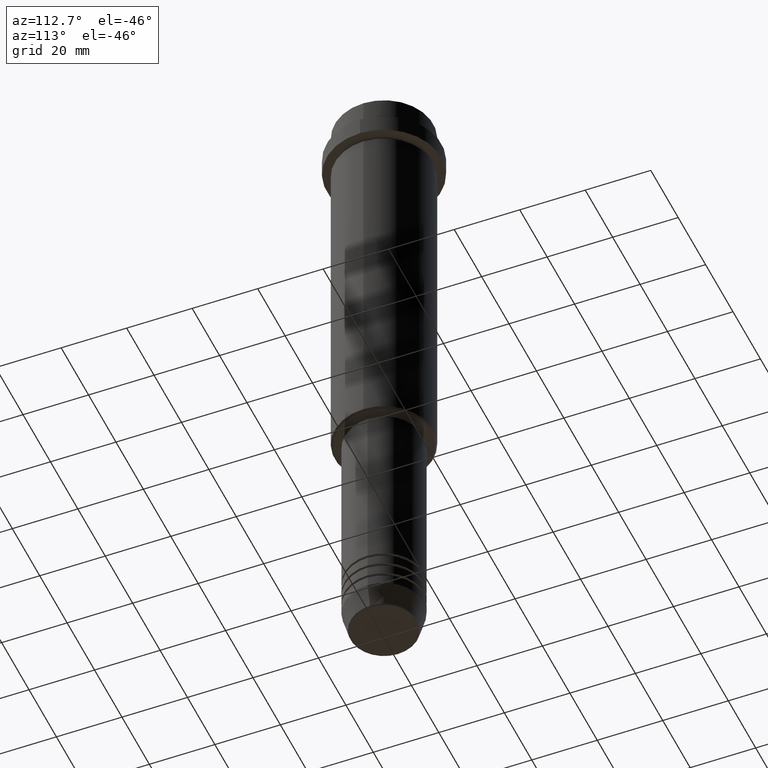
[diagram: clean part render]
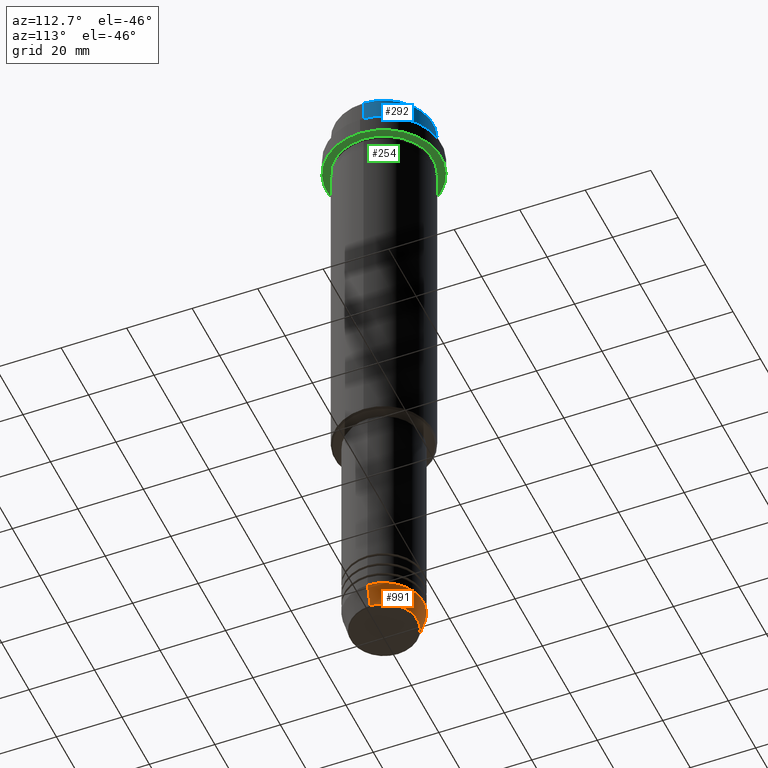
[diagram: same view with three faces highlighted in distinct colors, each labeled with its STEP entity id]
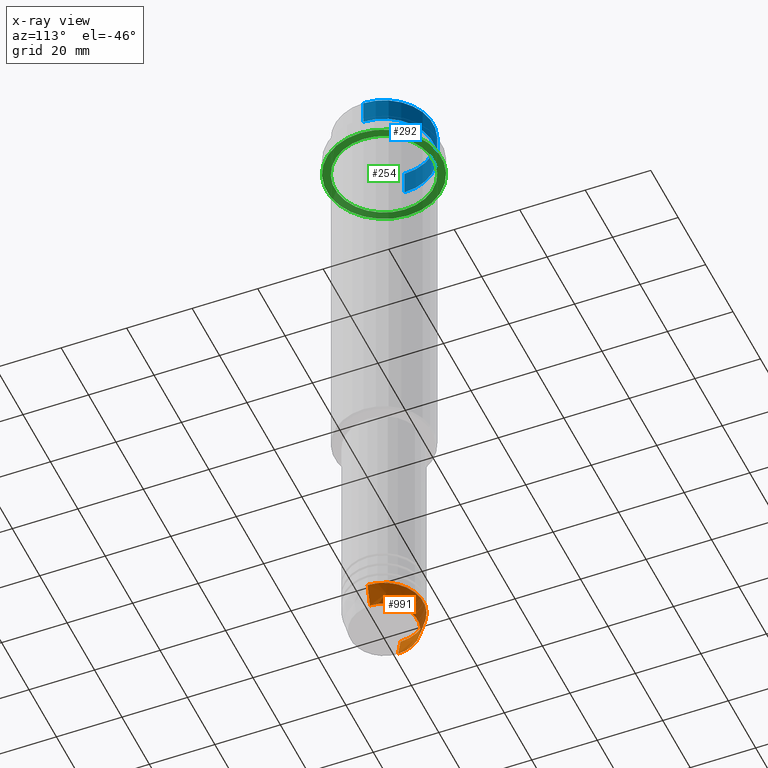
[diagram: x-ray of the same camera — body ghosted, the three highlighted faces saturated]
A machine part, auxiliary view with three faces highlighted in distinct colors.
The next image is the same camera in x-ray (body ghosted, the three faces saturated) — at least one of them is partly hidden behind the body in this view.
Their STEP definitions:

[orange] entity #991 — the highlighted conical surface has half-angle 15 deg.
#40 = CARTESIAN_POINT ( 'NONE',  ( 0.000000000000000000, 0.000000000000000000, -199.6294095225512706 ) ) ;
#63 = ORIENTED_EDGE ( 'NONE', *, *, #619, .T. ) ;
#66 = CONICAL_SURFACE ( 'NONE', #158, 12.00000000000000000, 0.2617993877991500740 ) ;
#103 = DIRECTION ( 'NONE',  ( 1.000000000000000000, 0.000000000000000000, 0.000000000000000000 ) ) ;
#112 = VERTEX_POINT ( 'NONE', #857 ) ;
#128 = CARTESIAN_POINT ( 'NONE',  ( 12.00000000000000000, 0.000000000000000000, -193.0000000000000000 ) ) ;
#158 = AXIS2_PLACEMENT_3D ( 'NONE', #198, #633, #308 ) ;
#160 = VECTOR ( 'NONE', #1121, 1000.000000000000000 ) ;
#178 = EDGE_CURVE ( 'NONE', #273, #112, #557, .T. ) ;
#198 = CARTESIAN_POINT ( 'NONE',  ( 0.000000000000000000, 0.000000000000000000, -193.0000000000000000 ) ) ;
#258 = LINE ( 'NONE', #576, #160 ) ;
#273 = VERTEX_POINT ( 'NONE', #128 ) ;
#308 = DIRECTION ( 'NONE',  ( 1.000000000000000000, 0.000000000000000000, 0.000000000000000000 ) ) ;
#311 = DIRECTION ( 'NONE',  ( -0.2588190451025213501, 3.169619151431772337E-17, 0.9659258262890680902 ) ) ;
#316 = CARTESIAN_POINT ( 'NONE',  ( -12.00000000000000000, 1.469576158976823947E-15, -193.0000000000000000 ) ) ;
#380 = VERTEX_POINT ( 'NONE', #588 ) ;
#464 = CARTESIAN_POINT ( 'NONE',  ( 0.000000000000000000, 0.000000000000000000, -193.0000000000000000 ) ) ;
#476 = DIRECTION ( 'NONE',  ( -0.000000000000000000, -0.000000000000000000, 1.000000000000000000 ) ) ;
#554 = ORIENTED_EDGE ( 'NONE', *, *, #178, .F. ) ;
#557 = CIRCLE ( 'NONE', #1314, 12.00000000000000000 ) ;
#576 = CARTESIAN_POINT ( 'NONE',  ( 12.00000000000000000, 0.000000000000000000, -193.0000000000000000 ) ) ;
#588 = CARTESIAN_POINT ( 'NONE',  ( 10.22365507213719127, 0.000000000000000000, -199.6294095225512706 ) ) ;
#619 = EDGE_CURVE ( 'NONE', #1283, #112, #1274, .T. ) ;
#633 = DIRECTION ( 'NONE',  ( -0.000000000000000000, -0.000000000000000000, 1.000000000000000000 ) ) ;
#780 = VECTOR ( 'NONE', #311, 1000.000000000000000 ) ;
#834 = AXIS2_PLACEMENT_3D ( 'NONE', #40, #476, #893 ) ;
#855 = CIRCLE ( 'NONE', #834, 10.22365507213719127 ) ;
#857 = CARTESIAN_POINT ( 'NONE',  ( -12.00000000000000000, 1.469576158976823947E-15, -193.0000000000000000 ) ) ;
#893 = DIRECTION ( 'NONE',  ( 1.000000000000000000, 0.000000000000000000, 0.000000000000000000 ) ) ;
#905 = CARTESIAN_POINT ( 'NONE',  ( -10.22365507213719127, 1.360806402472382744E-15, -199.6294095225512706 ) ) ;
#907 = DIRECTION ( 'NONE',  ( -0.000000000000000000, -0.000000000000000000, 1.000000000000000000 ) ) ;
#991 = ADVANCED_FACE ( 'NONE', ( #1272 ), #66, .T. ) ;
#1121 = DIRECTION ( 'NONE',  ( 0.2588190451025213501, 0.000000000000000000, 0.9659258262890680902 ) ) ;
#1181 = ORIENTED_EDGE ( 'NONE', *, *, #1290, .F. ) ;
#1272 = FACE_OUTER_BOUND ( 'NONE', #1280, .T. ) ;
#1274 = LINE ( 'NONE', #316, #780 ) ;
#1280 = EDGE_LOOP ( 'NONE', ( #1399, #63, #554, #1181 ) ) ;
#1283 = VERTEX_POINT ( 'NONE', #905 ) ;
#1290 = EDGE_CURVE ( 'NONE', #380, #273, #258, .T. ) ;
#1314 = AXIS2_PLACEMENT_3D ( 'NONE', #464, #907, #103 ) ;
#1329 = EDGE_CURVE ( 'NONE', #380, #1283, #855, .T. ) ;
#1399 = ORIENTED_EDGE ( 'NONE', *, *, #1329, .T. ) ;

[blue] entity #292 — the highlighted cylindrical surface (partial cylindrical patch) has radius 15 mm, axis along (-0, -0, 1).
#1 = ORIENTED_EDGE ( 'NONE', *, *, #156, .T. ) ;
#6 = ORIENTED_EDGE ( 'NONE', *, *, #175, .T. ) ;
#34 = DIRECTION ( 'NONE',  ( 1.000000000000000000, 0.000000000000000000, 0.000000000000000000 ) ) ;
#141 = DIRECTION ( 'NONE',  ( -0.000000000000000000, -0.000000000000000000, 1.000000000000000000 ) ) ;
#156 = EDGE_CURVE ( 'NONE', #789, #676, #778, .T. ) ;
#175 = EDGE_CURVE ( 'NONE', #609, #1392, #1110, .T. ) ;
#176 = CARTESIAN_POINT ( 'NONE',  ( 0.000000000000000000, 0.000000000000000000, -0.5000000000000108802 ) ) ;
#209 = DIRECTION ( 'NONE',  ( -0.000000000000000000, -0.000000000000000000, 1.000000000000000000 ) ) ;
#233 = EDGE_LOOP ( 'NONE', ( #6, #315, #1, #1400 ) ) ;
#266 = CARTESIAN_POINT ( 'NONE',  ( -15.00000000000000000, 1.836970198721029589E-15, -0.5000000000000108802 ) ) ;
#292 = ADVANCED_FACE ( 'NONE', ( #453 ), #357, .T. ) ;
#315 = ORIENTED_EDGE ( 'NONE', *, *, #667, .T. ) ;
#357 = CYLINDRICAL_SURFACE ( 'NONE', #914, 15.00000000000000000 ) ;
#372 = VECTOR ( 'NONE', #141, 1000.000000000000000 ) ;
#386 = CARTESIAN_POINT ( 'NONE',  ( 0.000000000000000000, 0.000000000000000000, -7.999999999999998224 ) ) ;
#406 = DIRECTION ( 'NONE',  ( -0.000000000000000000, -0.000000000000000000, 1.000000000000000000 ) ) ;
#453 = FACE_OUTER_BOUND ( 'NONE', #233, .T. ) ;
#550 = LINE ( 'NONE', #1401, #755 ) ;
#609 = VERTEX_POINT ( 'NONE', #1366 ) ;
#667 = EDGE_CURVE ( 'NONE', #1392, #789, #550, .T. ) ;
#676 = VERTEX_POINT ( 'NONE', #1202 ) ;
#755 = VECTOR ( 'NONE', #209, 1000.000000000000000 ) ;
#778 = CIRCLE ( 'NONE', #830, 15.00000000000000000 ) ;
#789 = VERTEX_POINT ( 'NONE', #266 ) ;
#794 = CARTESIAN_POINT ( 'NONE',  ( 15.00000000000000000, 0.000000000000000000, 0.000000000000000000 ) ) ;
#795 = DIRECTION ( 'NONE',  ( 1.000000000000000000, 0.000000000000000000, 0.000000000000000000 ) ) ;
#800 = DIRECTION ( 'NONE',  ( -0.000000000000000000, -0.000000000000000000, 1.000000000000000000 ) ) ;
#830 = AXIS2_PLACEMENT_3D ( 'NONE', #176, #923, #34 ) ;
#914 = AXIS2_PLACEMENT_3D ( 'NONE', #1374, #406, #1267 ) ;
#923 = DIRECTION ( 'NONE',  ( 0.000000000000000000, 0.000000000000000000, -1.000000000000000000 ) ) ;
#1013 = LINE ( 'NONE', #794, #372 ) ;
#1110 = CIRCLE ( 'NONE', #1355, 15.00000000000000000 ) ;
#1143 = CARTESIAN_POINT ( 'NONE',  ( -15.00000000000000000, 1.836970198721029589E-15, -7.999999999999998224 ) ) ;
#1202 = CARTESIAN_POINT ( 'NONE',  ( 15.00000000000000000, 0.000000000000000000, -0.5000000000000108802 ) ) ;
#1267 = DIRECTION ( 'NONE',  ( 1.000000000000000000, 0.000000000000000000, 0.000000000000000000 ) ) ;
#1300 = EDGE_CURVE ( 'NONE', #609, #676, #1013, .T. ) ;
#1355 = AXIS2_PLACEMENT_3D ( 'NONE', #386, #800, #795 ) ;
#1366 = CARTESIAN_POINT ( 'NONE',  ( 15.00000000000000000, 0.000000000000000000, -7.999999999999998224 ) ) ;
#1374 = CARTESIAN_POINT ( 'NONE',  ( 0.000000000000000000, 0.000000000000000000, 0.000000000000000000 ) ) ;
#1392 = VERTEX_POINT ( 'NONE', #1143 ) ;
#1400 = ORIENTED_EDGE ( 'NONE', *, *, #1300, .F. ) ;
#1401 = CARTESIAN_POINT ( 'NONE',  ( -15.00000000000000000, 1.836970198721029589E-15, 0.000000000000000000 ) ) ;

[green] entity #254 — the highlighted planar face has unit normal (0, 0, -1).
#22 = AXIS2_PLACEMENT_3D ( 'NONE', #24, #402, #508 ) ;
#24 = CARTESIAN_POINT ( 'NONE',  ( 0.000000000000000000, 0.000000000000000000, -15.00000000000000000 ) ) ;
#27 = CARTESIAN_POINT ( 'NONE',  ( 0.000000000000000000, 0.000000000000000000, -15.00000000000000000 ) ) ;
#29 = DIRECTION ( 'NONE',  ( -1.000000000000000000, 0.000000000000000000, 0.000000000000000000 ) ) ;
#47 = EDGE_CURVE ( 'NONE', #1273, #507, #1379, .T. ) ;
#90 = DIRECTION ( 'NONE',  ( -0.000000000000000000, -0.000000000000000000, 1.000000000000000000 ) ) ;
#126 = CARTESIAN_POINT ( 'NONE',  ( 0.000000000000000000, 0.000000000000000000, -15.00000000000000000 ) ) ;
#151 = AXIS2_PLACEMENT_3D ( 'NONE', #27, #1108, #559 ) ;
#181 = ORIENTED_EDGE ( 'NONE', *, *, #211, .T. ) ;
#205 = ORIENTED_EDGE ( 'NONE', *, *, #1352, .T. ) ;
#211 = EDGE_CURVE ( 'NONE', #427, #1285, #345, .T. ) ;
#213 = CIRCLE ( 'NONE', #22, 17.50000000000000000 ) ;
#246 = FACE_OUTER_BOUND ( 'NONE', #1038, .T. ) ;
#254 = ADVANCED_FACE ( 'NONE', ( #962, #246 ), #422, .T. ) ;
#276 = AXIS2_PLACEMENT_3D ( 'NONE', #1064, #864, #1387 ) ;
#326 = AXIS2_PLACEMENT_3D ( 'NONE', #126, #570, #29 ) ;
#345 = CIRCLE ( 'NONE', #850, 14.99999999999999467 ) ;
#402 = DIRECTION ( 'NONE',  ( -0.000000000000000000, -0.000000000000000000, 1.000000000000000000 ) ) ;
#422 = PLANE ( 'NONE',  #276 ) ;
#427 = VERTEX_POINT ( 'NONE', #798 ) ;
#507 = VERTEX_POINT ( 'NONE', #719 ) ;
#508 = DIRECTION ( 'NONE',  ( 1.000000000000000000, 0.000000000000000000, 0.000000000000000000 ) ) ;
#559 = DIRECTION ( 'NONE',  ( 1.000000000000000000, 0.000000000000000000, 0.000000000000000000 ) ) ;
#570 = DIRECTION ( 'NONE',  ( -0.000000000000000000, -0.000000000000000000, 1.000000000000000000 ) ) ;
#605 = EDGE_LOOP ( 'NONE', ( #205, #181 ) ) ;
#697 = CARTESIAN_POINT ( 'NONE',  ( -14.99999999999999467, 0.000000000000000000, -15.00000000000000000 ) ) ;
#719 = CARTESIAN_POINT ( 'NONE',  ( 17.50000000000000000, 0.000000000000000000, -15.00000000000000000 ) ) ;
#798 = CARTESIAN_POINT ( 'NONE',  ( 14.99999999999999467, 1.836970198721029194E-15, -15.00000000000000000 ) ) ;
#850 = AXIS2_PLACEMENT_3D ( 'NONE', #1167, #90, #1107 ) ;
#864 = DIRECTION ( 'NONE',  ( 0.000000000000000000, 0.000000000000000000, -1.000000000000000000 ) ) ;
#928 = EDGE_CURVE ( 'NONE', #507, #1273, #213, .T. ) ;
#937 = CIRCLE ( 'NONE', #326, 14.99999999999999467 ) ;
#962 = FACE_BOUND ( 'NONE', #605, .T. ) ;
#1038 = EDGE_LOOP ( 'NONE', ( #1403, #1050 ) ) ;
#1050 = ORIENTED_EDGE ( 'NONE', *, *, #47, .F. ) ;
#1064 = CARTESIAN_POINT ( 'NONE',  ( 0.000000000000000000, 17.50000000000000000, -15.00000000000000000 ) ) ;
#1107 = DIRECTION ( 'NONE',  ( -1.000000000000000000, 0.000000000000000000, 0.000000000000000000 ) ) ;
#1108 = DIRECTION ( 'NONE',  ( -0.000000000000000000, -0.000000000000000000, 1.000000000000000000 ) ) ;
#1167 = CARTESIAN_POINT ( 'NONE',  ( 0.000000000000000000, 0.000000000000000000, -15.00000000000000000 ) ) ;
#1273 = VERTEX_POINT ( 'NONE', #1327 ) ;
#1285 = VERTEX_POINT ( 'NONE', #697 ) ;
#1327 = CARTESIAN_POINT ( 'NONE',  ( -17.50000000000000000, 2.143131898507868248E-15, -15.00000000000000000 ) ) ;
#1352 = EDGE_CURVE ( 'NONE', #1285, #427, #937, .T. ) ;
#1379 = CIRCLE ( 'NONE', #151, 17.50000000000000000 ) ;
#1387 = DIRECTION ( 'NONE',  ( -1.000000000000000000, 0.000000000000000000, -0.000000000000000000 ) ) ;
#1403 = ORIENTED_EDGE ( 'NONE', *, *, #928, .F. ) ;